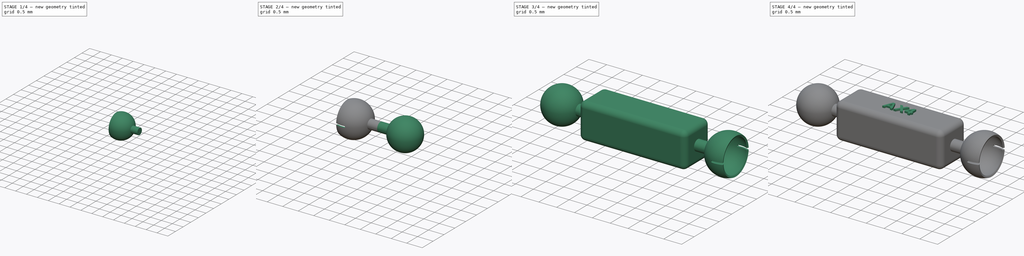
[diagram: build sequence overview — one tinted view per stage of 4, left to right]
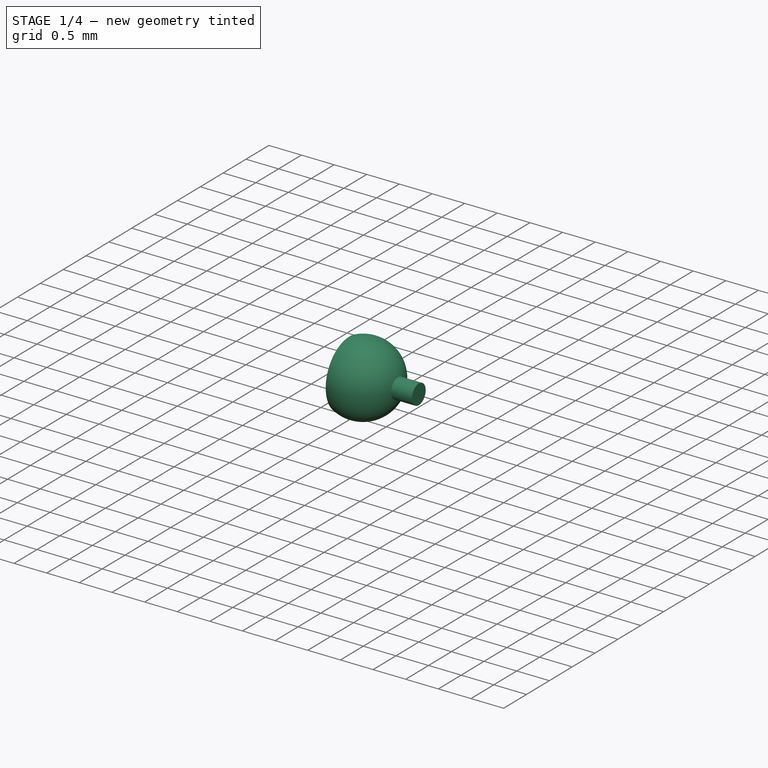
[diagram: stage 1 of 4 — iso view after this stage's code; geometry added in this stage tinted green]
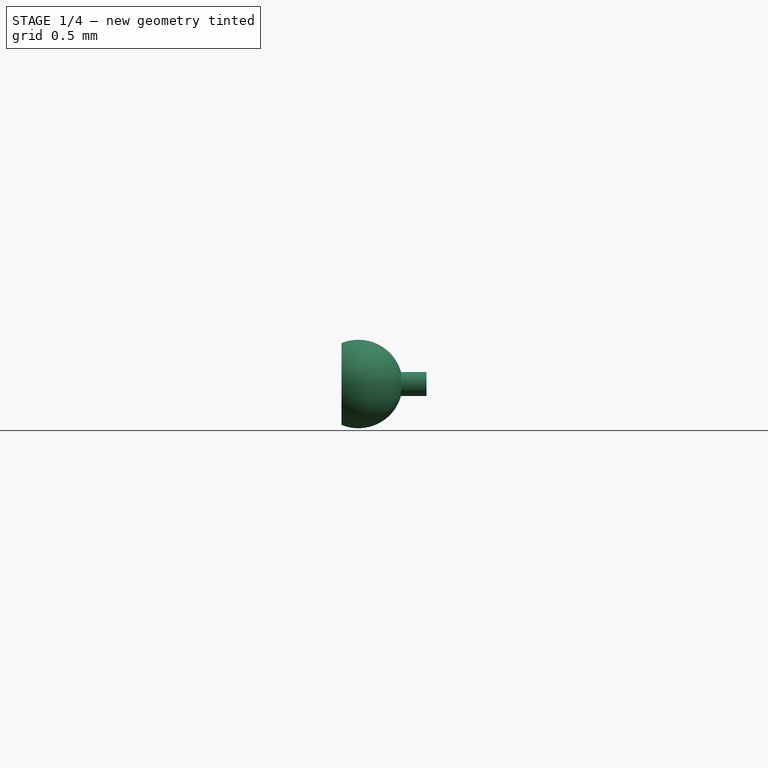
[diagram: stage 1 of 4 — front view after this stage's code; geometry added in this stage tinted green]
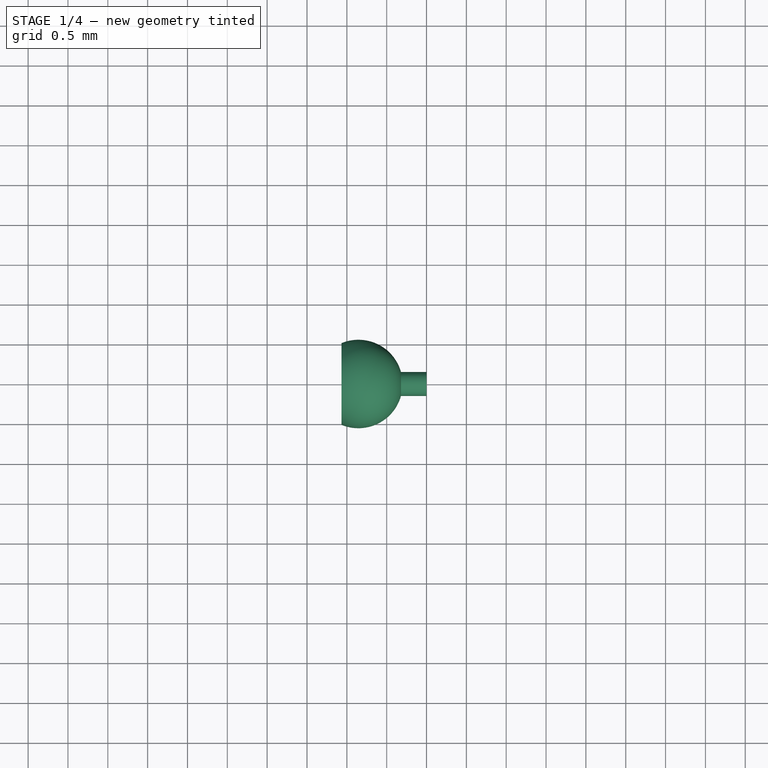
[diagram: stage 1 of 4 — top view after this stage's code; geometry added in this stage tinted green]
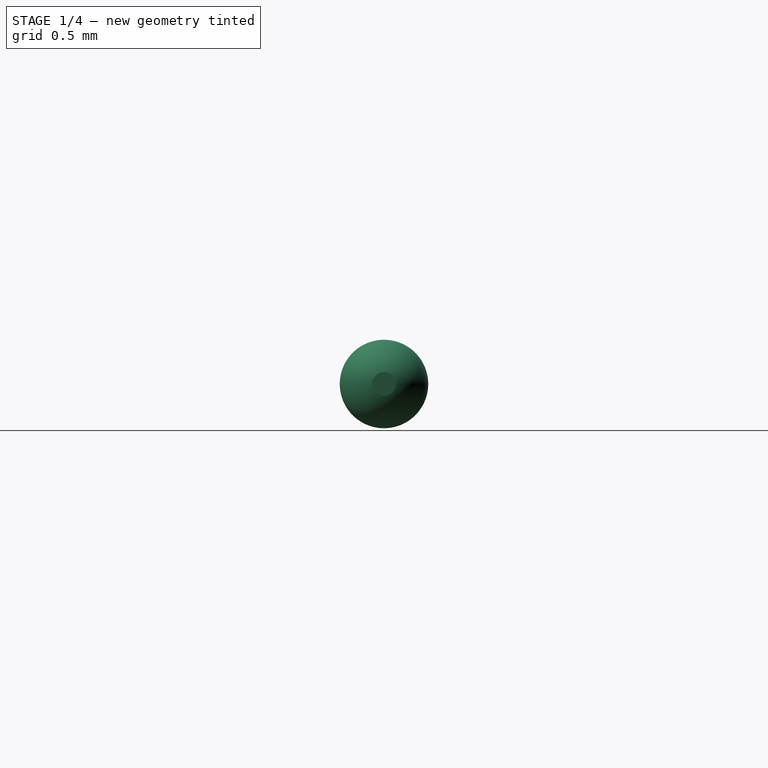
[diagram: stage 1 of 4 — right view after this stage's code; geometry added in this stage tinted green]
FCSTD DOCUMENT  (FreeCAD 0.20R29177 (Git))
Label: ax4
License: All rights reserved
LicenseURL: http://en.wikipedia.org/wiki/All_rights_reserved
objects: Sketcher::SketchObject×7, PartDesign::Pad×4, PartDesign::Body×4, PartDesign::Line×2, PartDesign::Revolution×2, Spreadsheet::Sheet×1, PartDesign::Fillet×1, PartDesign::Pocket×1, Part::MultiFuse×1, PartDesign::FeatureBase×1, Part::Part2DObjectPython×1
note: 32 computed .brp shape members not serialized (recipe doc carries the construction recipe); baked Part::Feature solids carry a one-line shape summary decoded from their .brp

FEATURE [PartDesign::Body] Body001  label="BallBody"
  Group = -> [Sketch001,Pad001,Sketch002,DatumLine,Revolution]
  Origin = -> Origin001
  Placement = pos=(-1.5,0,0) rot=(0,0,1;3.14159rad)
  Tip = -> Revolution
  expr: .Placement.Base.x = Spreadsheet.BallJointOffsetX
FEATURE [Sketcher::SketchObject] Sketch003  label="CupConnSketch"
  FullyConstrained = true
  MapMode = 5
  Placement = pos=(0,0,0) rot=(0.57735,0.57735,0.57735;2.0944rad)
  Support = -> [YZ_Plane002]
  expr: Constraints[1] = Spreadsheet.BallJointCupConnDiam
  sketch-geometry (1):
    g0: Circle CenterX=0 CenterY=0 CenterZ=0 NormalX=0 NormalY=0 NormalZ=1 AngleXU=0 Radius=0.15
  constraints (2):
    c: Coincident(g0,g-1)
    c: Diameter(g0) = 0.3
FEATURE [PartDesign::Pad] Pad002  label="CupConnPad"
  Direction = (1,-2e-16,3e-16)
  Length = 0.325
  Length2 = 10
  Placement = pos=(0,0,0) rot=(0.57735,0.57735,0.57735;2.0944rad)
  Profile = -> Sketch003
  ReferenceAxis = -> Sketch003 [N_Axis]
  Reversed = true
  Type = 0
  expr: Length = Spreadsheet.BallJointCupConnPadLength
FEATURE [Sketcher::SketchObject] Sketch004  label="CupSketch"
  FullyConstrained = true
  MapMode = 5
  Placement = pos=(0,0,0) rot=(1,0,0;1.5708rad)
  Support = -> [XZ_Plane002]
  expr: Constraints[20] = Spreadsheet.BallJointCupCutoutAngle
  expr: Constraints[4] = Spreadsheet.BallJointCupConnLength
  expr: Constraints[5] = Spreadsheet.BallJointCupOuterDiam * 0.5
  expr: Constraints[7] = Spreadsheet.BallJointCupOuterDiam
  expr: Constraints[9] = Spreadsheet.BallJointCupInnerDiam
  sketch-geometry (10):
    g0: LineSegment StartX=0 StartY=0 StartZ=0 EndX=-0.3 EndY=0 EndZ=0
    g1: LineSegment StartX=-0.3 StartY=0 StartZ=0 EndX=-0.855 EndY=0 EndZ=0
    g2: ArcOfCircle CenterX=-0.855 CenterY=0 CenterZ=0 NormalX=0 NormalY=0 NormalZ=1 AngleXU=0 Radius=0.555 StartAngle=0 EndAngle=1.9635
    g3: ArcOfCircle CenterX=-0.855 CenterY=0 CenterZ=0 NormalX=0 NormalY=0 NormalZ=1 AngleXU=0 Radius=0.505 StartAngle=0 EndAngle=1.9635
    g4: LineSegment StartX=-1.06739 StartY=0.512753 StartZ=0 EndX=-0.855 EndY=0 EndZ=0
    g5: LineSegment StartX=-1.06739 StartY=-0.512753 StartZ=0 EndX=-0.855 EndY=0 EndZ=0
    g6: LineSegment StartX=-1.06739 StartY=0.512753 StartZ=0 EndX=-1.06739 EndY=0 EndZ=0
    g7: LineSegment StartX=-1.06739 StartY=0 StartZ=0 EndX=-1.06739 EndY=-0.512753 EndZ=0
    g8: LineSegment StartX=-1.06739 StartY=0.512753 StartZ=0 EndX=-1.04826 EndY=0.466559 EndZ=0
    g9: LineSegment StartX=-0.3 StartY=0 StartZ=0 EndX=-0.35 EndY=0 EndZ=0
  constraints (28):
    c: Horizontal(g0)
    c: Coincident(g0,g1)
    c: Horizontal(g1)
    c: Coincident(g0,g-1)
    c: DistanceX(g0,g0) = 0.3
    c: DistanceX(g1,g1) = 0.555
    c: Coincident(g1,g2)
    c: Diameter(g2) = 1.11
    c: Coincident(g3,g2)
    c: Diameter(g3) = 1.01
    c: Coincident(g4,g2)
    c: Coincident(g5,g2)
    c: Coincident(g6,g7)
    c: PointOnObject(g6,g-1)
    c: Equal(g7,g6)
    c: Coincident(g5,g7)
    c: Coincident(g6,g4)
    c: PointOnObject(g3,g4)
    c: Coincident(g4,g2)
    c: Vertical(g7)
    c: Angle(g4,g5) = 2.35619
    c: Coincident(g8,g2)
    c: Coincident(g8,g3)
    c: Coincident(g9,g3)
    c: Coincident(g9,g2)
    c: PointOnObject(g3,g1)
    c: PointOnObject(g2,g0)
    c: Parallel(g6,g7)
FEATURE [Sketcher::SketchObject] Sketch005  label="RevolveAxisSketch"
  FullyConstrained = true
  MapMode = 5
  Placement = pos=(0,0,0) rot=(1,0,0;1.5708rad)
  Support = -> [XZ_Plane002]
  expr: Constraints[2] = Spreadsheet.BallJointCupConnLength + Spreadsheet.BallJointCupOuterDiam
  sketch-geometry (1):
    g0: LineSegment StartX=-1.41 StartY=0 StartZ=0 EndX=0 EndY=0 EndZ=0
  constraints (3):
    c: Horizontal(g0)
    c: Coincident(g0,g-1)
    c: DistanceX(g0,g0) = 1.41
FEATURE [PartDesign::Line] DatumLine001  label="RevolveDatumLine"
  AttacherType = Attacher::AttachEngineLine
  Length = 20
  MapMode = 29
  Placement = pos=(0,0,0) rot=(0.57735,0.57735,0.57735;2.0944rad)
  ResizeMode = 0
  Support = -> [Sketch005]
FEATURE [PartDesign::Revolution] Revolution001  label="CupRevolution"
  Angle = 360
  Axis = (1,0,0)
  Base = (0,0,0)
  BaseFeature = -> Pad002
  Placement = pos=(0,0,0) rot=(0.57735,0.57735,0.57735;2.0944rad)
  Profile = -> Sketch004
  ReferenceAxis = -> X_Axis002
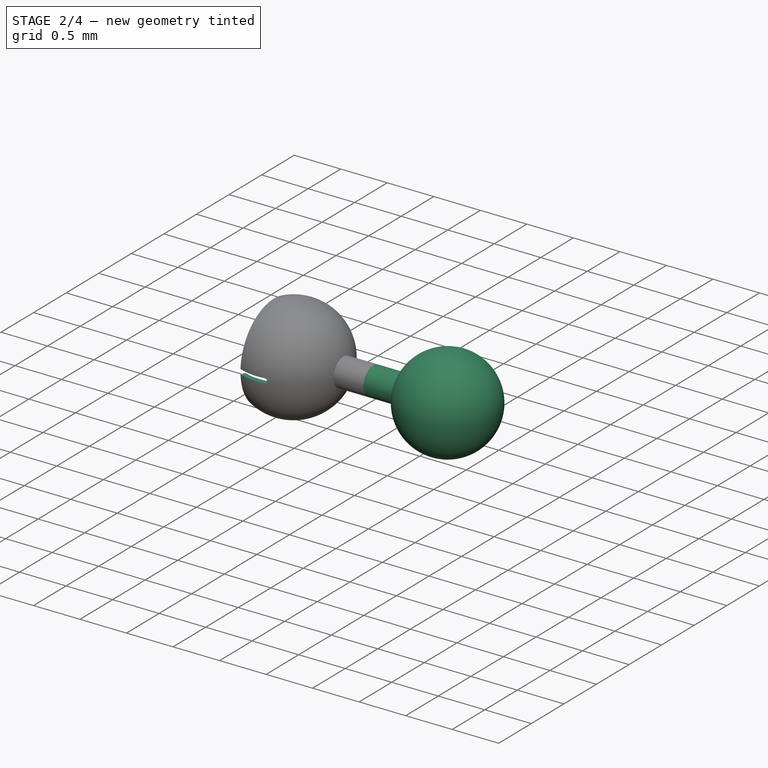
[diagram: stage 2 of 4 — iso view after this stage's code; geometry added in this stage tinted green]
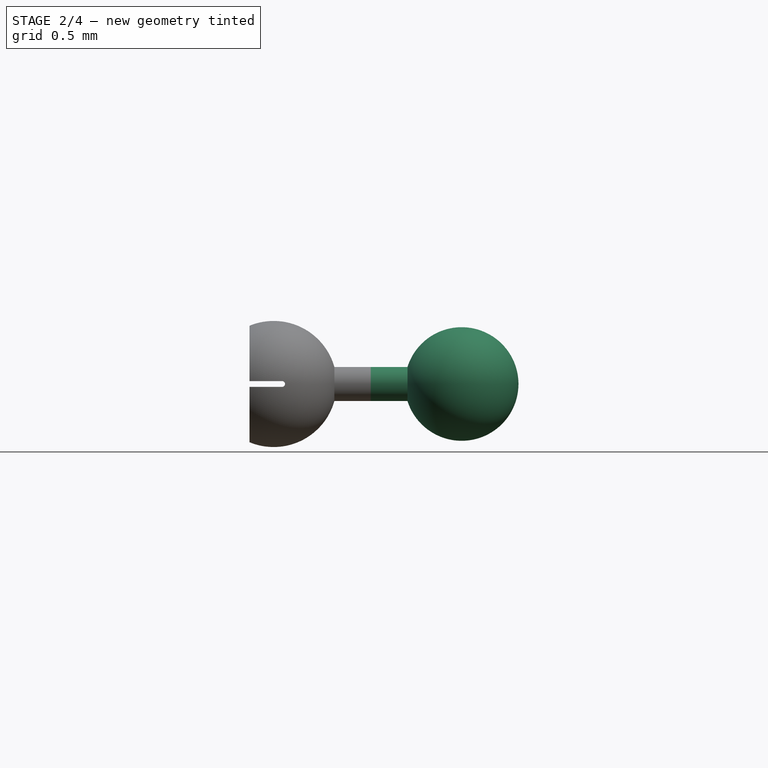
[diagram: stage 2 of 4 — front view after this stage's code; geometry added in this stage tinted green]
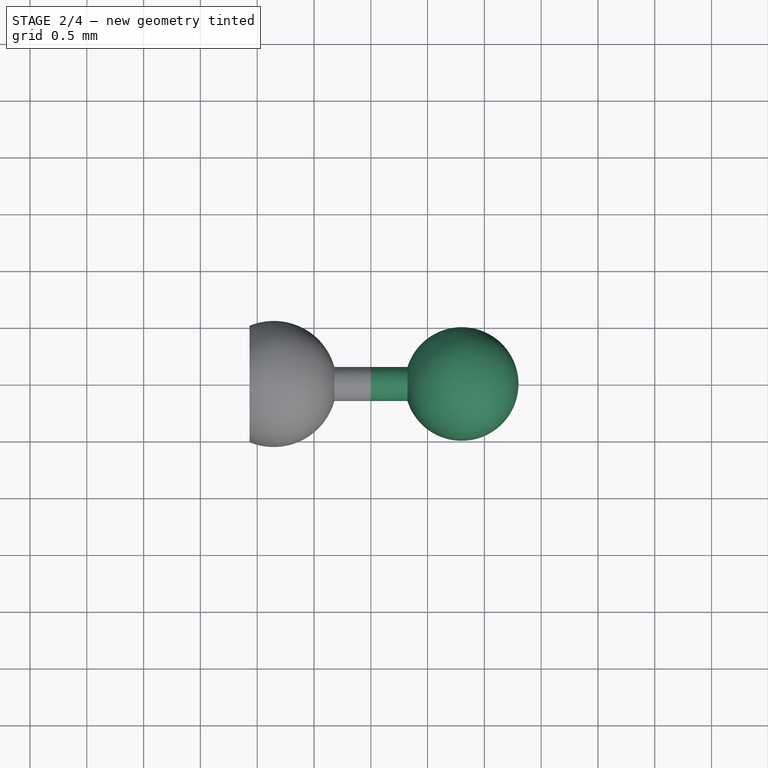
[diagram: stage 2 of 4 — top view after this stage's code; geometry added in this stage tinted green]
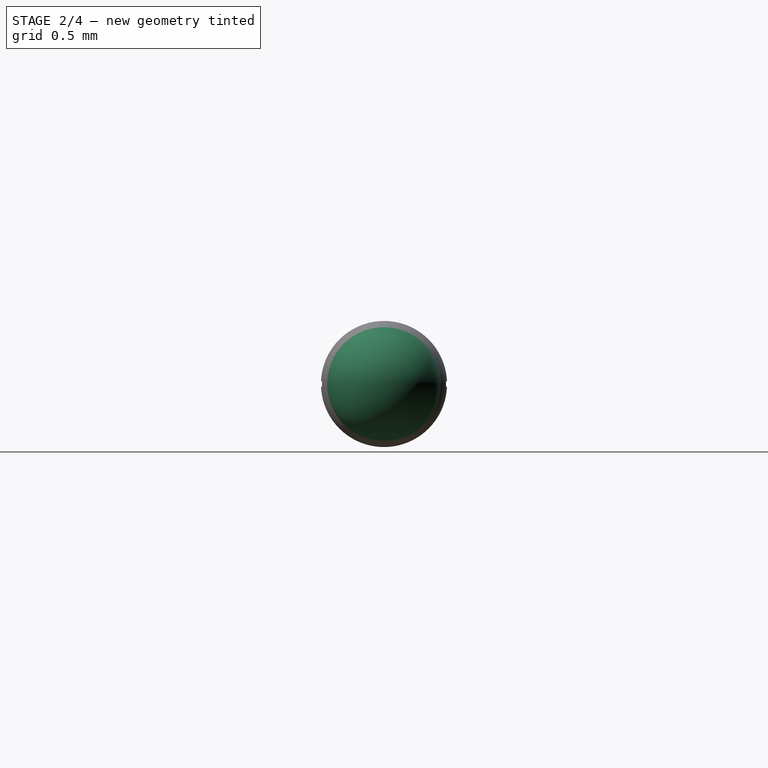
[diagram: stage 2 of 4 — right view after this stage's code; geometry added in this stage tinted green]
FEATURE [PartDesign::Body] Body  label=" BeamBody"
  Group = -> [Sketch,Pad,Fillet]
  Origin = -> Origin
  Tip = -> Fillet
FEATURE [Sketcher::SketchObject] Sketch001  label="BallJointConnSketch"
  FullyConstrained = true
  MapMode = 5
  Placement = pos=(0,0,0) rot=(0.57735,0.57735,0.57735;2.0944rad)
  Support = -> [YZ_Plane001]
  expr: Constraints[1] = Spreadsheet.BallJointConnDiam
  sketch-geometry (1):
    g0: Circle CenterX=0 CenterY=0 CenterZ=0 NormalX=0 NormalY=0 NormalZ=1 AngleXU=0 Radius=0.15
  constraints (2):
    c: Coincident(g0,g-1)
    c: Diameter(g0) = 0.3
FEATURE [PartDesign::Pad] Pad001  label="BallJointConnPad"
  Direction = (1,-2e-16,3e-16)
  Length = 0.8
  Length2 = 10
  Placement = pos=(0,0,0) rot=(0.57735,0.57735,0.57735;2.0944rad)
  Profile = -> Sketch001
  ReferenceAxis = -> Sketch001 [N_Axis]
  Type = 0
  expr: Length = Spreadsheet.BallJointConnPadLength
FEATURE [Sketcher::SketchObject] Sketch002  label="BallSketch"
  FullyConstrained = true
  MapMode = 5
  Placement = pos=(0,0,0) rot=(1,0,0;1.5708rad)
  Support = -> [XZ_Plane001]
  expr: Constraints[13] = Spreadsheet.BallJointDiam
  expr: Constraints[4] = Spreadsheet.BallJointConnLength
  expr: Constraints[5] = Spreadsheet.BallJointDiam * 0.5
  sketch-geometry (5):
    g0: LineSegment StartX=0 StartY=2e-16 StartZ=0 EndX=0.3 EndY=2e-16 EndZ=0
    g1: LineSegment StartX=0.3 StartY=2e-16 StartZ=0 EndX=0.8 EndY=2e-16 EndZ=0
    g2: ArcOfCircle CenterX=0.8 CenterY=2e-16 CenterZ=0 NormalX=0 NormalY=0 NormalZ=1 AngleXU=0 Radius=0.5 StartAngle=0 EndAngle=3.14159
    g3: LineSegment StartX=0.3 StartY=2e-16 StartZ=0 EndX=0.8 EndY=2e-16 EndZ=0
    g4: LineSegment StartX=0.8 StartY=2e-16 StartZ=0 EndX=1.3 EndY=2e-16 EndZ=0
  constraints (14):
    c: Horizontal(g0)
    c: Coincident(g0,g1)
    c: Horizontal(g1)
    c: Coincident(g-1,g0)
    c: DistanceX(g0,g0) = 0.3
    c: DistanceX(g1,g1) = 0.5
    c: Coincident(g3,g4)
    c: Horizontal(g3)
    c: Horizontal(g4)
    c: Coincident(g3,g2)
    c: Coincident(g3,g2)
    c: Coincident(g4,g2)
    c: Coincident(g2,g1)
    c: Diameter(g2) = 1
FEATURE [PartDesign::Line] DatumLine  label="BallRevolveDatumLine"
  AttacherType = Attacher::AttachEngineLine
  Length = 20
  MapMode = 29
  Placement = pos=(0,0,2e-16) rot=(0.57735,0.57735,0.57735;2.0944rad)
  ResizeMode = 0
  Support = -> [Sketch002]
FEATURE [PartDesign::Revolution] Revolution  label="BallRevolution"
  Angle = 360
  Axis = (1,0,0)
  Base = (0,0,2e-16)
  BaseFeature = -> Pad001
  Placement = pos=(0,0,0) rot=(0.57735,0.57735,0.57735;2.0944rad)
  Profile = -> Sketch002
  ReferenceAxis = -> DatumLine
  Reversed = true
FEATURE [Sketcher::SketchObject] Sketch006  label="SlitSketch"
  FullyConstrained = true
  MapMode = 5
  Placement = pos=(0,0,0) rot=(1,0,0;1.5708rad)
  Support = -> [XZ_Plane002]
  expr: Constraints[28] = Spreadsheet.BallJointCupSlitWidth
  expr: Constraints[31] = Spreadsheet.BallJointCupSlitDepth
  expr: Constraints[32] = Spreadsheet.BallJointCupOuterDiam
  expr: Constraints[4] = Spreadsheet.BallJointCupConnLength
  expr: Constraints[5] = Spreadsheet.BallJointCupOuterDiam * 0.5
  sketch-geometry (12):
    g0: LineSegment StartX=-0.855 StartY=0 StartZ=0 EndX=-0.3 EndY=0 EndZ=0
    g1: LineSegment StartX=-0.3 StartY=0 StartZ=0 EndX=0 EndY=0 EndZ=0
    g2: LineSegment StartX=-0.855 StartY=0.025 StartZ=0 EndX=-1.965 EndY=0.025 EndZ=0
    g3: LineSegment StartX=-1.965 StartY=0.025 StartZ=0 EndX=-1.965 EndY=-0.025 EndZ=0
    g4: LineSegment StartX=-1.965 StartY=-0.025 StartZ=0 EndX=-0.855 EndY=-0.025 EndZ=0
    g5: LineSegment StartX=-0.855 StartY=-0.025 StartZ=0 EndX=-0.78 EndY=-0.025 EndZ=0
    g6: LineSegment StartX=-0.855 StartY=0.025 StartZ=0 EndX=-0.78 EndY=0.025 EndZ=0
    g7: LineSegment StartX=-0.855 StartY=0.025 StartZ=0 EndX=-0.855 EndY=0 EndZ=0
    g8: LineSegment StartX=-0.855 StartY=0 StartZ=0 EndX=-0.855 EndY=-0.025 EndZ=0
    g9: ArcOfCircle CenterX=-0.78 CenterY=1.0213e-11 CenterZ=0 NormalX=0 NormalY=0 NormalZ=1 AngleXU=0 Radius=0.025 StartAngle=4.71239 EndAngle=7.85398
    g10: LineSegment StartX=-0.78 StartY=0.025 StartZ=0 EndX=-0.78 EndY=-0.025 EndZ=0
    g11: GeomPoint X=-0.755 Y=0 Z=0
  constraints (33):
    c: Horizontal(g0)
    c: Coincident(g0,g1)
    c: Horizontal(g1)
    c: Coincident(g1,g-1)
    c: DistanceX(g1,g1) = 0.3
    c: DistanceX(g0,g0) = 0.555
    c: Horizontal(g2)
    c: Coincident(g2,g3)
    c: Vertical(g3)
    c: Coincident(g3,g4)
    c: Horizontal(g4)
    c: Coincident(g4,g5)
    c: Horizontal(g5)
    c: Horizontal(g6)
    c: Coincident(g2,g6)
    c: Equal(g6,g5)
    c: Vertical(g7)
    c: Coincident(g7,g8)
    c: Vertical(g8)
    c: Equal(g8,g7)
    c: Coincident(g7,g0)
    c: Coincident(g7,g2)
    c: Coincident(g4,g8)
    c: Coincident(g6,g9)
    c: Coincident(g9,g5)
    c: Coincident(g10,g6)
    c: Coincident(g10,g5)
    c: PointOnObject(g9,g10)
    c: DistanceY(g3,g3) = 0.05
    c: PointOnObject(g11,g0)
    c: PointOnObject(g11,g9)
    c: DistanceX(g0,g11) = 0.1
    c: DistanceX(g2,g2) = 1.11
FEATURE [PartDesign::Pocket] Pocket  label="SlitPocket"
  BaseFeature = -> Revolution001
  Direction = (0,1,2e-16)
  Length = 5
  Length2 = 5
  Midplane = true
  Placement = pos=(0,0,0) rot=(0.57735,0.57735,0.57735;2.0944rad)
  Profile = -> Sketch006
  ReferenceAxis = -> Sketch006 [N_Axis]
  Type = 1
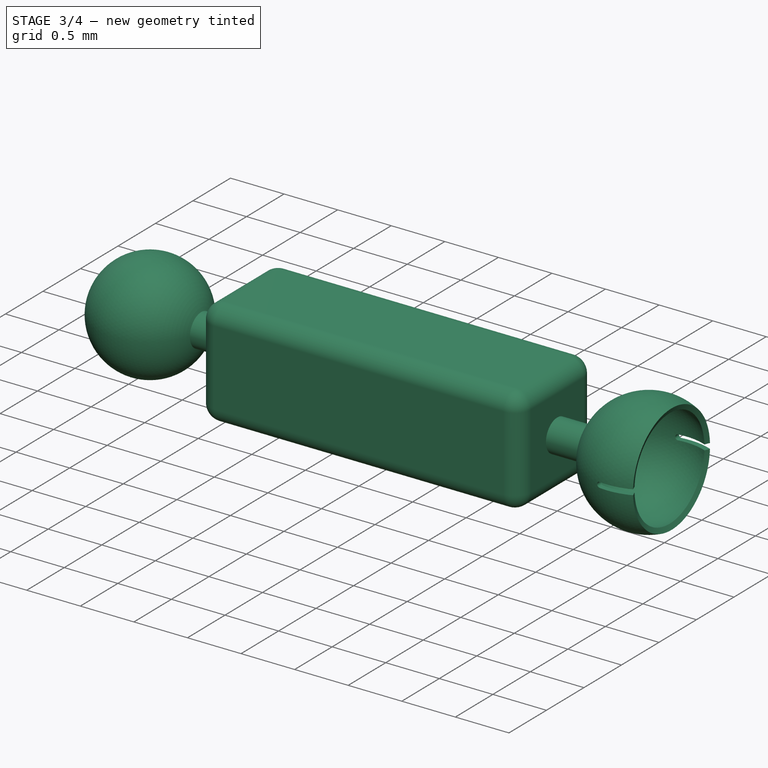
[diagram: stage 3 of 4 — iso view after this stage's code; geometry added in this stage tinted green]
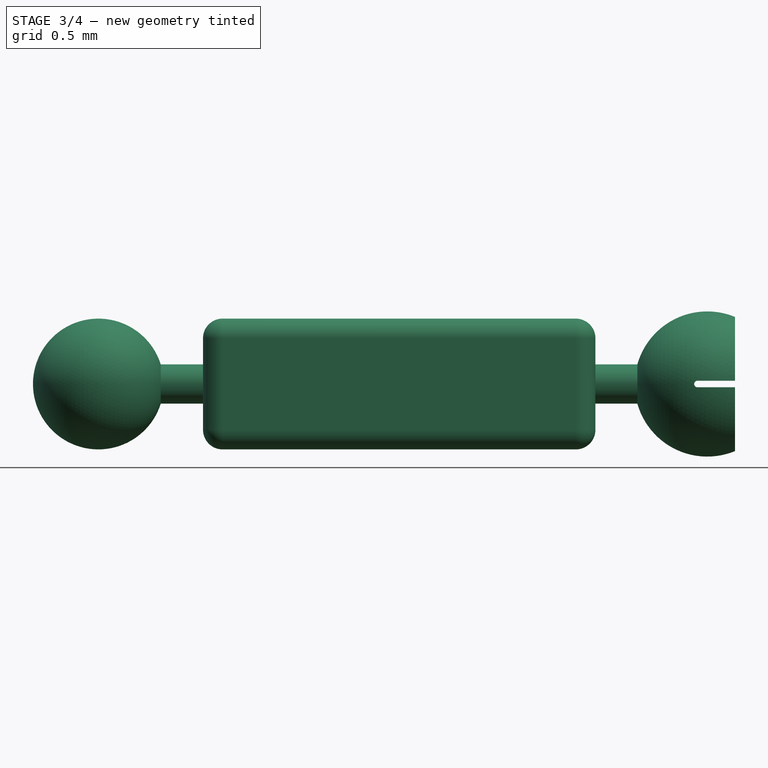
[diagram: stage 3 of 4 — front view after this stage's code; geometry added in this stage tinted green]
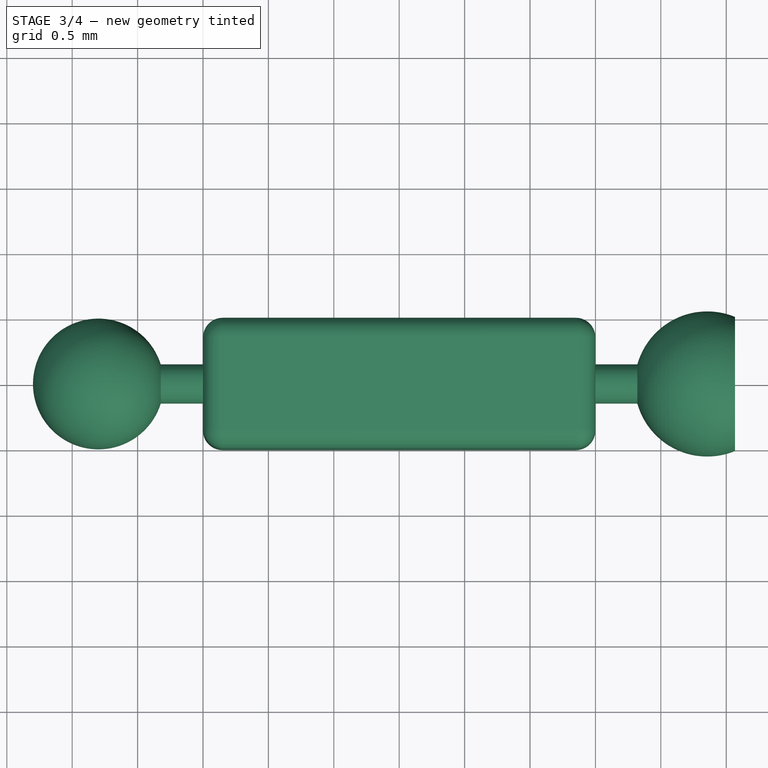
[diagram: stage 3 of 4 — top view after this stage's code; geometry added in this stage tinted green]
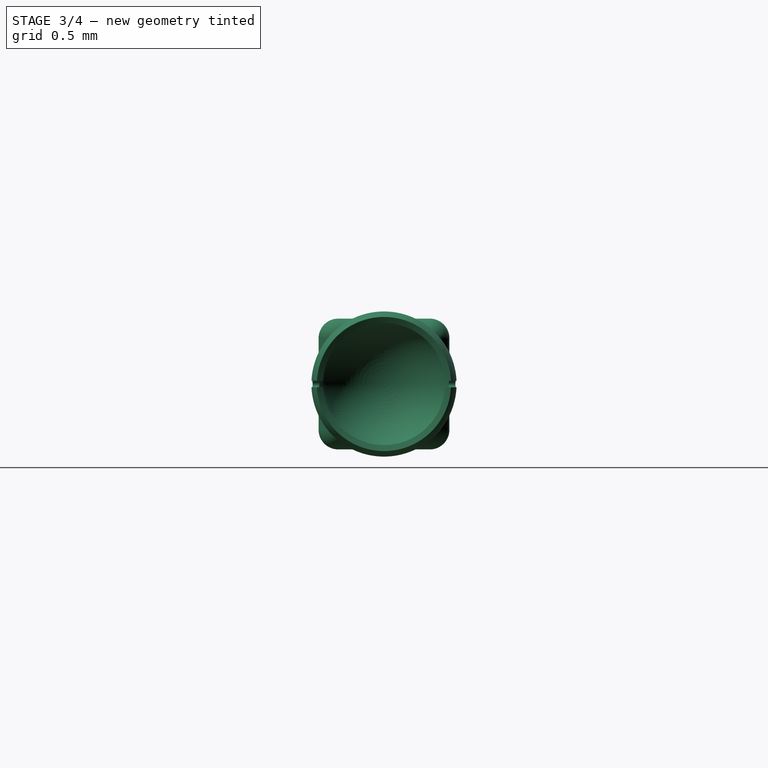
[diagram: stage 3 of 4 — right view after this stage's code; geometry added in this stage tinted green]
FEATURE [Spreadsheet::Sheet] Spreadsheet
  cells = A2=Design Parameters; A3=RefLength; B3(RefLength)==1mm; A4=BeamWidth; B4(BeamWidth)==1 * RefLength; A5=BeamHeight; B5(BeamHeight)==1 * RefLength; A6=BeamLength; B6(BeamLength)==3 * RefLength; A7=EdgeFilletRadius; B7(EdgeFilletRadius)==0.15 * RefLength; A9=BallJointDiam; B9(BallJointDiam)==1 * RefLength; A10=BallJointDiamMargin; B10(BallJointDiamMargin)==0.005 * BallJointDiam; A11=BallJointConnLength; B11(BallJointConnLength)==0.3 * RefLength; A12=BallJointConnPadLength; B12(BallJointConnPadLength)==BallJointConnLength + 0.5 * BallJointDiam; A13=BallJointConnDiam; B13(BallJointConnDiam)==0.3 * RefLength; A14=BallJointOffsetX; B14(BallJointOffsetX)==-0.5 * BeamLength; A16=BallJointCupThickness; B16(BallJointCupThickness)==0.05 * RefLength; A17=BallJointCupInnerDiam; B17(BallJointCupInnerDiam)==BallJointDiam + 2 * BallJointDiamMargin; A18=BallJointCupOuterDiam; B18(BallJointCupOuterDiam)==BallJointCupInnerDiam + 2 * BallJointCupThickness; A19=BallJointCupConnLength; B19(BallJointCupConnLength)==0.3 * RefLength; A20=BallJointCupConnPadLength; B20(BallJointCupConnPadLength)==BallJointCupConnLength + 0.5 * BallJointCupThickness; A21=BallJointCupConnDiam; B21(BallJointCupConnDiam)==0.3 * RefLength; A22=BallJointCupCutoutAngle; B22(BallJointCupCutoutAngle)==135deg; A23=BallJointCupSlitWidth; B23(BallJointCupSlitWidth)==0.05 * RefLength; A24=BallJointCupSlitDepth; B24(BallJointCupSlitDepth)==0.1 * RefLength; C24=Depth past midline; A25=BallJointCupOffsetX; B25(BallJointCupOffsetX)==0.5 * BeamLength; A27=LabelSize; B27(LabelSize)==0.15 * RefLength; A28=LabelString; B28(LabelString)=AX4; A29=LabelPadHeight; B29(LabelPadHeight)==0.05 * RefLength; A30=LabelPosX; B30(LabelPosX)==-0.4 * RefLength; A31=LabelPosY; B31(LabelPosY)==-0.15 * RefLength
FEATURE [Sketcher::SketchObject] Sketch  label="BeamSketch"
  FullyConstrained = true
  MapMode = 5
  Support = -> [XY_Plane]
  expr: Constraints[10] = Spreadsheet.BeamWidth
  expr: Constraints[9] = Spreadsheet.BeamLength
  sketch-geometry (4):
    g0: LineSegment StartX=-1.5 StartY=0.5 StartZ=0 EndX=1.5 EndY=0.5 EndZ=0
    g1: LineSegment StartX=1.5 StartY=0.5 StartZ=0 EndX=1.5 EndY=-0.5 EndZ=0
    g2: LineSegment StartX=1.5 StartY=-0.5 StartZ=0 EndX=-1.5 EndY=-0.5 EndZ=0
    g3: LineSegment StartX=-1.5 StartY=-0.5 StartZ=0 EndX=-1.5 EndY=0.5 EndZ=0
  constraints (11):
    c: Coincident(g0,g1)
    c: Coincident(g1,g2)
    c: Coincident(g2,g3)
    c: Coincident(g3,g0)
    c: Horizontal(g0)
    c: Horizontal(g2)
    c: Vertical(g1)
    c: Vertical(g3)
    c: Symmetric(g0,g1,g-1)
    c: DistanceX(g0,g0) = 3
    c: DistanceY(g1,g1) = 1
FEATURE [PartDesign::Pad] Pad  label="BeamPad"
  Direction = (0,0,1)
  Length = 1
  Length2 = 10
  Midplane = true
  Profile = -> Sketch
  ReferenceAxis = -> Sketch [N_Axis]
  Type = 0
  expr: Length = Spreadsheet.BeamHeight
FEATURE [PartDesign::Fillet] Fillet  label="EdgeFillet"
  Base = -> Pad [Edge10]
  BaseFeature = -> Pad
  Radius = 0.15
  SupportTransform = false
  UseAllEdges = true
  expr: Radius = Spreadsheet.EdgeFilletRadius
FEATURE [PartDesign::Body] Body002  label="CupBody"
  Group = -> [Sketch003,Pad002,Sketch004,Sketch005,DatumLine001,Revolution001,Sketch006,Pocket]
  Origin = -> Origin002
  Placement = pos=(1.5,0,0) rot=(0,0,1;3.14159rad)
  Tip = -> Pocket
  expr: .Placement.Base.x = Spreadsheet.BallJointCupOffsetX
FEATURE [Part::MultiFuse] Fusion
  Shapes = -> [Body,Body001,Body002]
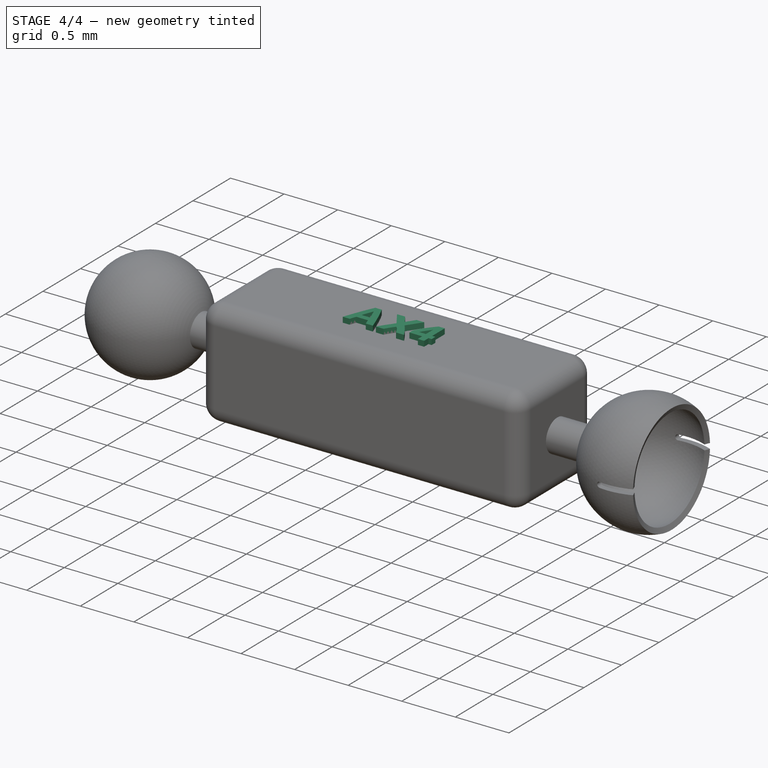
[diagram: stage 4 of 4 — iso view after this stage's code; geometry added in this stage tinted green]
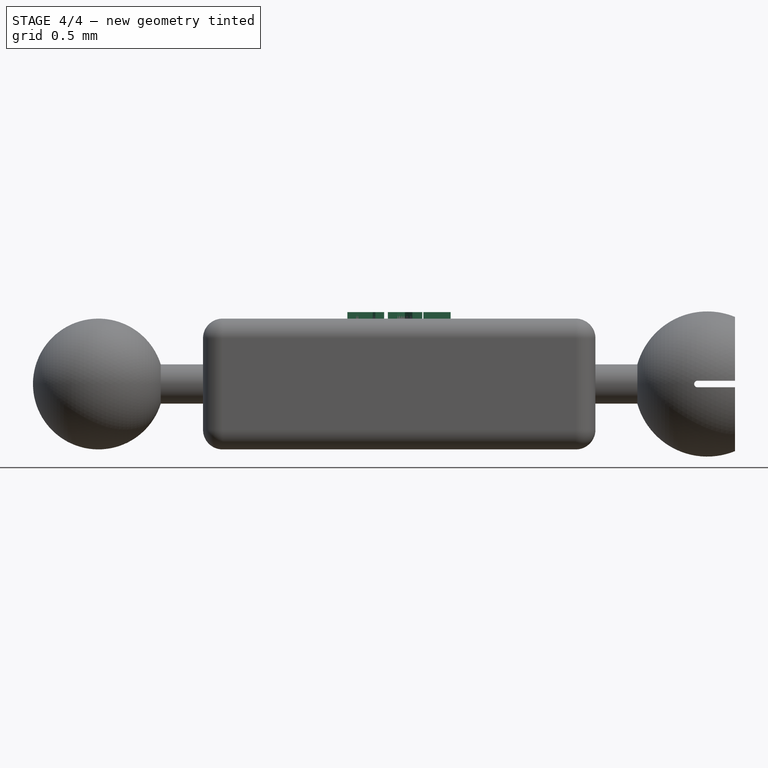
[diagram: stage 4 of 4 — front view after this stage's code; geometry added in this stage tinted green]
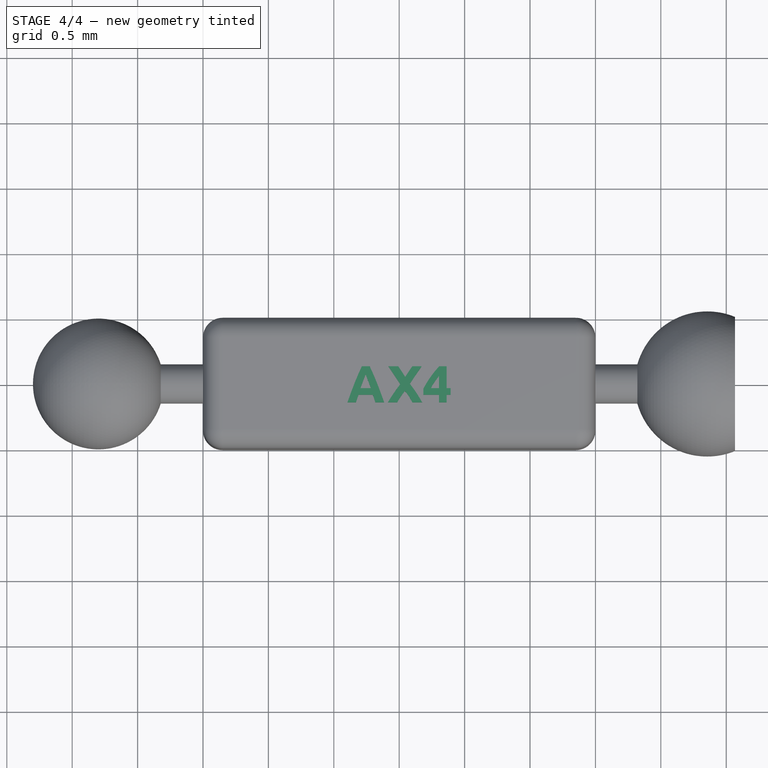
[diagram: stage 4 of 4 — top view after this stage's code; geometry added in this stage tinted green]
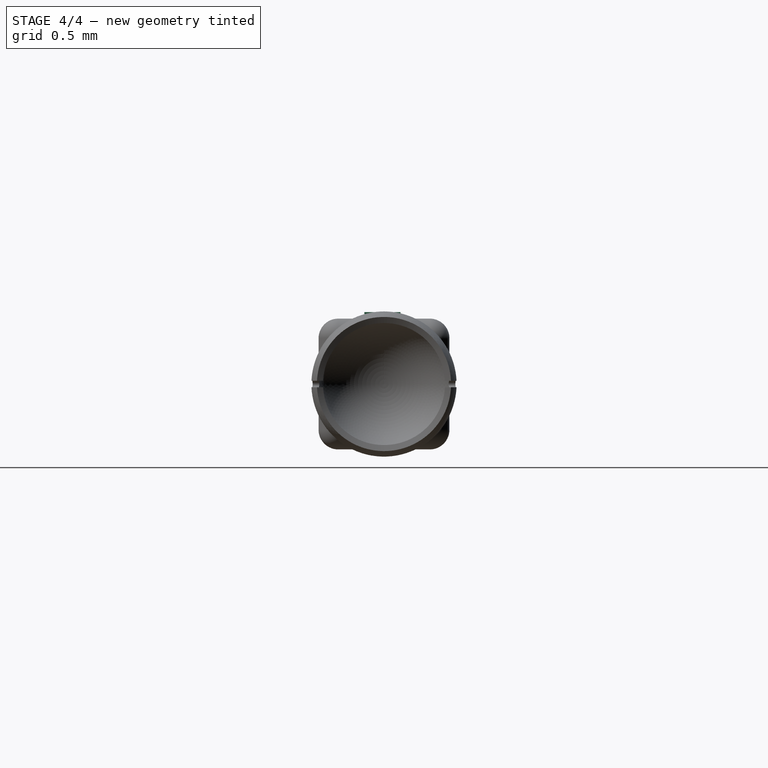
[diagram: stage 4 of 4 — right view after this stage's code; geometry added in this stage tinted green]
FEATURE [PartDesign::FeatureBase] BaseFeature
  BaseFeature = -> Fusion
FEATURE [Part::Part2DObjectPython] ShapeString  label="LabelShapeString"  # Draft 2D object (typed FeaturePython)
  FontFile = <userpath>/work/cad/wing_hinge_cad_models/rev2/font/Ubuntu-B.ttf
  MakeFace = true
  Placement = pos=(-0.4,-0.15,0.5) rot=(0,0,1;0rad)
  Size = 0.15
  String = AX4
  Tracking = 0
  expr: .Placement.Base.x = Spreadsheet.LabelPosX
  expr: .Placement.Base.y = Spreadsheet.LabelPosY
  expr: Size = Spreadsheet.LabelSize
  expr: String = Spreadsheet.LabelString
FEATURE [PartDesign::Pad] Pad003
  BaseFeature = -> BaseFeature
  Direction = (0,0,1)
  Length = 0.05
  Length2 = 10
  Profile = -> ShapeString
  ReferenceAxis = -> ShapeString [N_Axis]
  Type = 0
  expr: Length = Spreadsheet.LabelPadHeight
FEATURE [PartDesign::Body] Body003  label="FusionBody"
  BaseFeature = -> Fusion
  Group = -> [BaseFeature,ShapeString,Pad003]
  Origin = -> Origin003
  Tip = -> Pad003
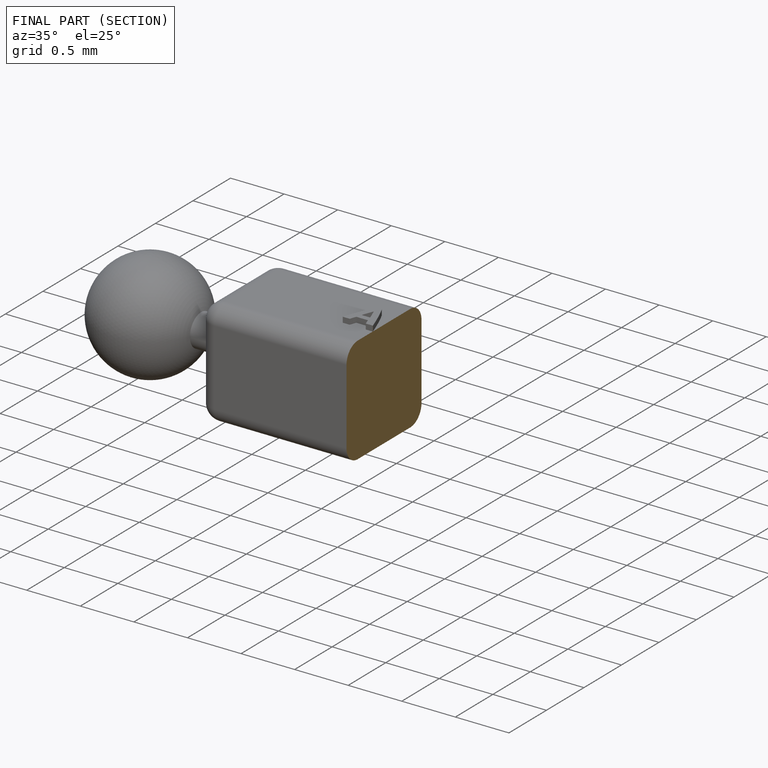
[diagram: finished part — half-section view (interior)]
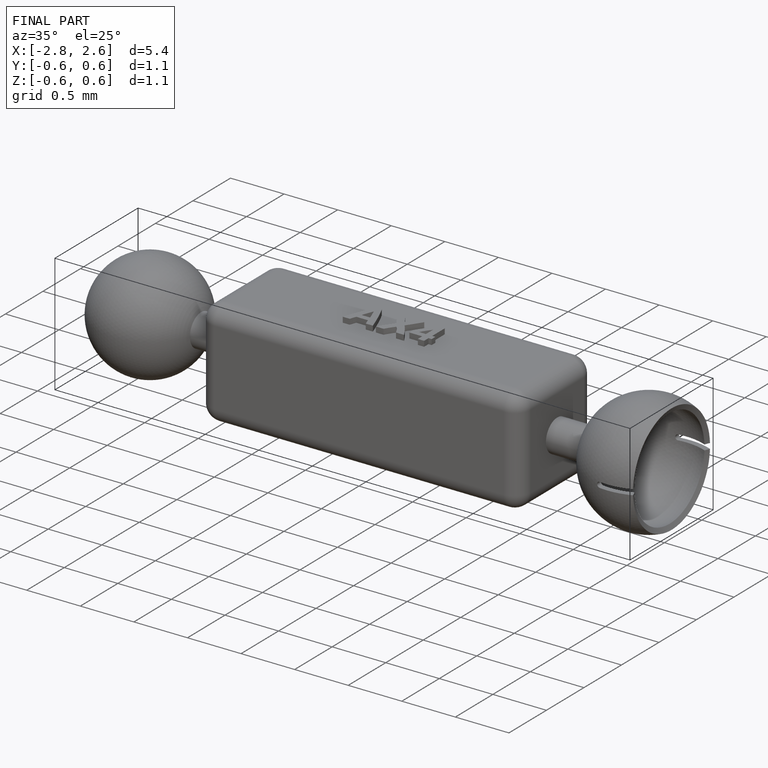
[diagram: finished part — iso view with bounding-box wireframe]
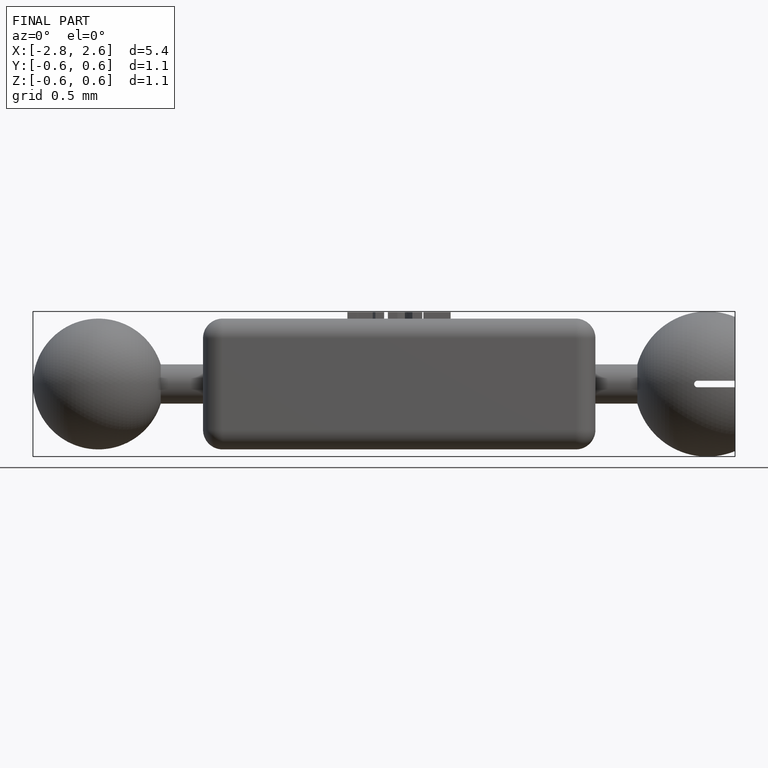
[diagram: finished part — front view with bounding-box wireframe]
